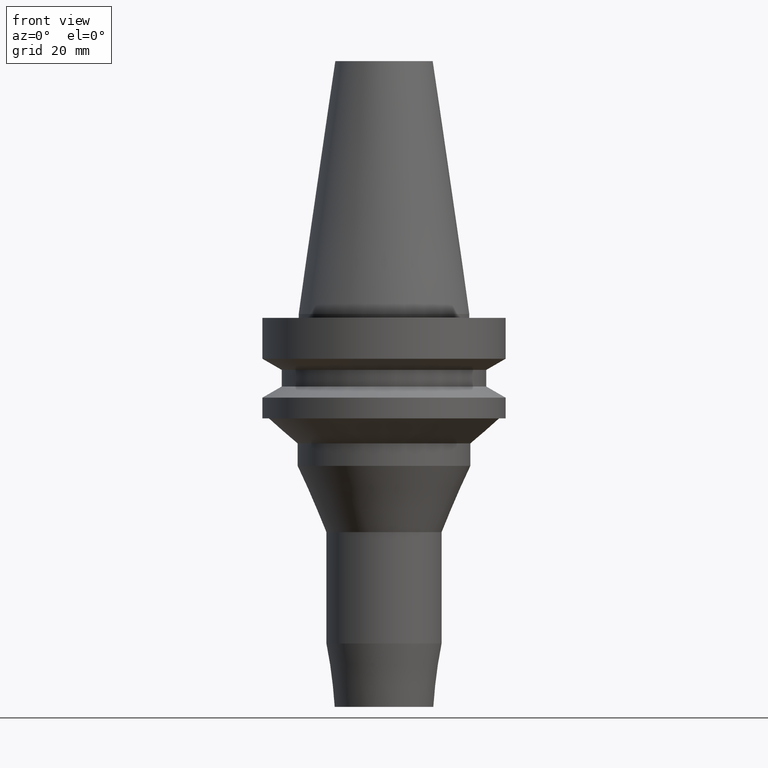
[diagram: clean part render]
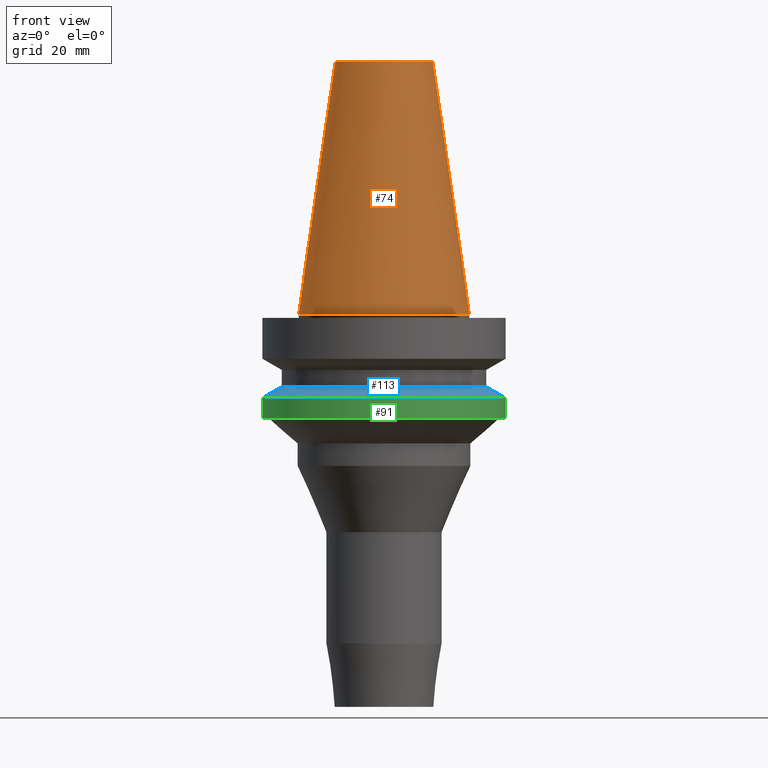
[diagram: same view with three faces highlighted in distinct colors, each labeled with its STEP entity id]
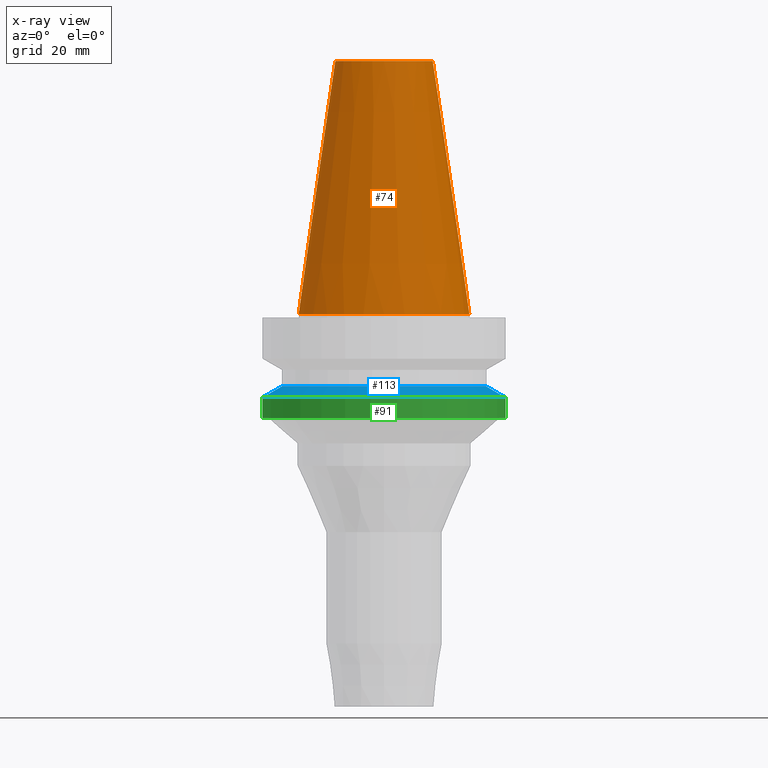
[diagram: x-ray of the same camera — body ghosted, the three highlighted faces saturated]
A machine part, front view with three faces highlighted in distinct colors.
The next image is the same camera in x-ray (body ghosted, the three faces saturated) — at least one of them is partly hidden behind the body in this view.
Their STEP definitions:

[orange] entity #74 — the highlighted conical surface has half-angle 8.297 deg.
#74=ADVANCED_FACE('Unnamed[1]',(#181,#182),#183,.T.);
#82=EDGE_CURVE('Unnamed[1]',#195,#195,#196,.T.);
#128=EDGE_CURVE('Unnamed[1]',#265,#265,#266,.T.);
#181=FACE_BOUND('',#321,.T.);
#182=FACE_BOUND('',#322,.T.);
#183=CONICAL_SURFACE('',#323,17.45625,0.144812498238936);
#195=VERTEX_POINT('',#338);
#196=CIRCLE('',#339,22.225);
#265=VERTEX_POINT('',#425);
#266=CIRCLE('',#426,12.6875000000001);
#321=EDGE_LOOP('',(#473));
#322=EDGE_LOOP('',(#474));
#323=AXIS2_PLACEMENT_3D('',#475,#476,#477);
#338=CARTESIAN_POINT('',(1.71319921032766E-029,22.2250000000001,-2.8153873565375E-013));
#339=AXIS2_PLACEMENT_3D('',#490,#491,#492);
#425=CARTESIAN_POINT('',(-4.00459503321185E-015,12.6875000000002,65.4000000000001));
#426=AXIS2_PLACEMENT_3D('',#567,#568,#569);
#473=ORIENTED_EDGE('',*,*,#82,.F.);
#474=ORIENTED_EDGE('',*,*,#128,.T.);
#475=CARTESIAN_POINT('',(-2.00229751660592E-015,7.63539136506926E-014,32.6999999999999));
#476=DIRECTION('',(6.12323399573677E-017,-2.41671098803783E-017,-1.0));
#477=DIRECTION('',(-3.34734404278211E-033,1.0,-2.41671098803783E-017));
#490=CARTESIAN_POINT('',(1.74032777401202E-029,7.5563649157604E-014,-2.8421709430404E-013));
#491=DIRECTION('',(6.12323399573677E-017,-2.41671098804196E-017,-1.0));
#492=DIRECTION('',(-3.34734404278898E-033,1.0,-2.41671098804196E-017));
#567=CARTESIAN_POINT('',(-4.00459503321185E-015,7.71441781437812E-014,65.4000000000001));
#568=DIRECTION('',(6.12323399573677E-017,-2.41671098804333E-017,-1.0));
#569=DIRECTION('',(-3.34734404278421E-033,1.0,-2.41671098804333E-017));

[blue] entity #113 — the highlighted conical surface has half-angle 60 deg.
#67=EDGE_CURVE('Unnamed[1]',#171,#171,#172,.T.);
#107=EDGE_CURVE('Unnamed[1]',#234,#234,#235,.T.);
#113=ADVANCED_FACE('Unnamed[1]',(#243,#244),#245,.T.);
#171=VERTEX_POINT('',#308);
#172=CIRCLE('',#309,31.5000000000006);
#234=VERTEX_POINT('',#387);
#235=CIRCLE('',#388,26.5);
#243=FACE_BOUND('',#398,.T.);
#244=FACE_BOUND('',#399,.T.);
#245=CONICAL_SURFACE('',#400,29.0000000000003,1.04719755119651);
#308=CARTESIAN_POINT('',(1.32473071268174E-015,31.5000000000007,-21.6344943473346));
#309=AXIS2_PLACEMENT_3D('',#463,#464,#465);
#387=CARTESIAN_POINT('',(1.1479681728942E-015,26.5,-18.7477430013855));
#388=AXIS2_PLACEMENT_3D('',#534,#535,#536);
#398=EDGE_LOOP('',(#544));
#399=EDGE_LOOP('',(#545));
#400=AXIS2_PLACEMENT_3D('',#546,#547,#548);
#463=CARTESIAN_POINT('',(1.32473071268174E-015,7.50408059555054E-014,-21.6344943473346));
#464=DIRECTION('',(6.12323399573677E-017,-2.41671098804295E-017,-1.0));
#465=DIRECTION('',(-3.34734404277357E-033,1.0,-2.41671098804295E-017));
#534=CARTESIAN_POINT('',(1.1479681728942E-015,7.51105703924803E-014,-18.7477430013855));
#535=DIRECTION('',(6.12323399573677E-017,-2.41671098803681E-017,-1.0));
#536=DIRECTION('',(-3.34734404278138E-033,1.0,-2.41671098803681E-017));
#544=ORIENTED_EDGE('',*,*,#67,.F.);
#545=ORIENTED_EDGE('',*,*,#107,.T.);
#546=CARTESIAN_POINT('',(1.23634944278797E-015,7.50756881739928E-014,-20.1911186743601));
#547=DIRECTION('',(6.12323399573677E-017,-2.41671098804015E-017,-1.0));
#548=DIRECTION('',(-3.34734404278951E-033,1.0,-2.41671098804015E-017));

[green] entity #91 — the highlighted cylindrical surface (bore or boss wall) has radius 31.5 mm, axis along (0, -0, -1).
#67=EDGE_CURVE('Unnamed[1]',#171,#171,#172,.T.);
#71=EDGE_CURVE('Unnamed[1]',#177,#177,#178,.T.);
#91=ADVANCED_FACE('Unnamed[1]',(#209,#210),#211,.T.);
#171=VERTEX_POINT('',#308);
#172=CIRCLE('',#309,31.5000000000006);
#177=VERTEX_POINT('',#316);
#178=CIRCLE('',#317,31.5000000000003);
#209=FACE_BOUND('',#355,.T.);
#210=FACE_BOUND('',#356,.T.);
#211=CYLINDRICAL_SURFACE('',#357,31.5000000000005);
#308=CARTESIAN_POINT('',(1.32473071268174E-015,31.5000000000007,-21.6344943473346));
#309=AXIS2_PLACEMENT_3D('',#463,#464,#465);
#316=CARTESIAN_POINT('',(1.65327317884891E-015,31.5000000000004,-26.9999999999998));
#317=AXIS2_PLACEMENT_3D('',#469,#470,#471);
#355=EDGE_LOOP('',(#506));
#356=EDGE_LOOP('',(#507));
#357=AXIS2_PLACEMENT_3D('',#508,#509,#510);
#463=CARTESIAN_POINT('',(1.32473071268174E-015,7.50408059555054E-014,-21.6344943473346));
#464=DIRECTION('',(6.12323399573677E-017,-2.41671098804295E-017,-1.0));
#465=DIRECTION('',(-3.34734404277357E-033,1.0,-2.41671098804295E-017));
#469=CARTESIAN_POINT('',(1.65327317884891E-015,7.49111371908336E-014,-26.9999999999998));
#470=DIRECTION('',(6.12323399573677E-017,-2.41671098804298E-017,-1.0));
#471=DIRECTION('',(-3.34734404278499E-033,1.0,-2.41671098804298E-017));
#506=ORIENTED_EDGE('',*,*,#71,.F.);
#507=ORIENTED_EDGE('',*,*,#67,.T.);
#508=CARTESIAN_POINT('',(1.48900194576533E-015,7.49759715731695E-014,-24.3172471736672));
#509=DIRECTION('',(6.12323399573677E-017,-2.41671098804297E-017,-1.0));
#510=DIRECTION('',(-3.34734404278498E-033,1.0,-2.41671098804297E-017));